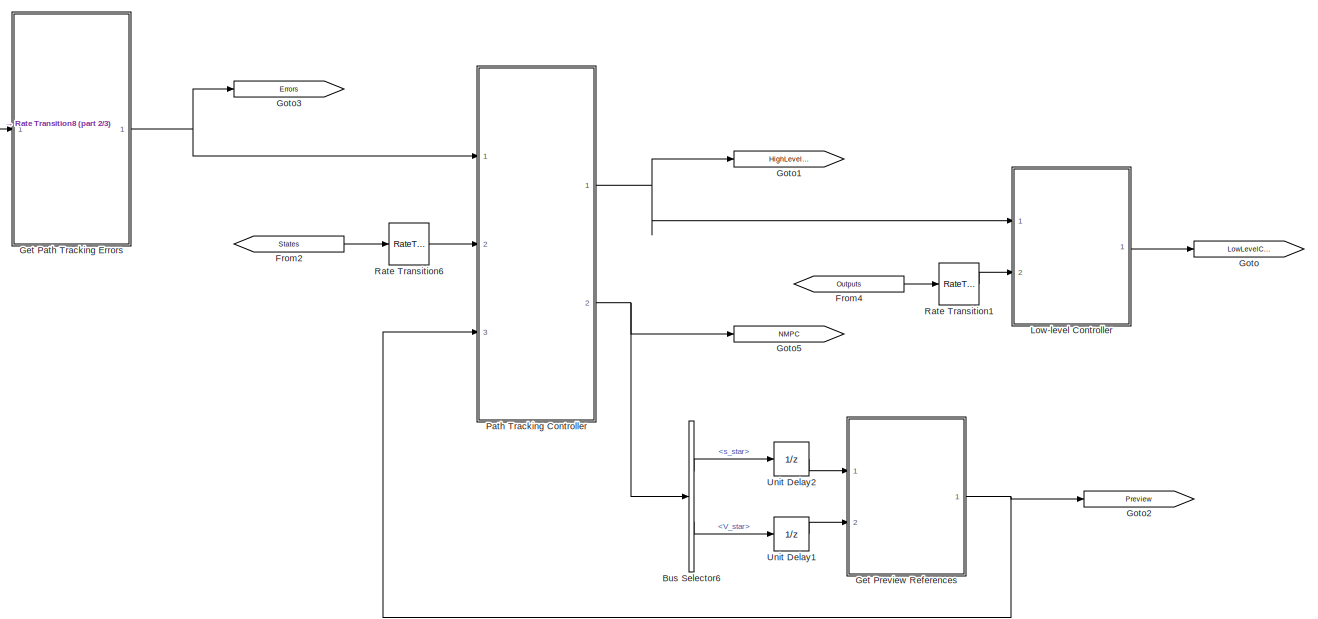
[diagram: root canvas - part 1/3, center side, full height]
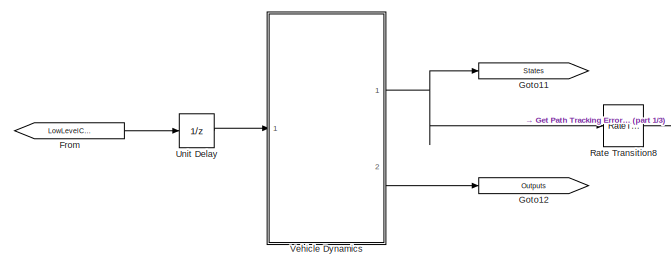
[diagram: root canvas - part 2/3, top left region]
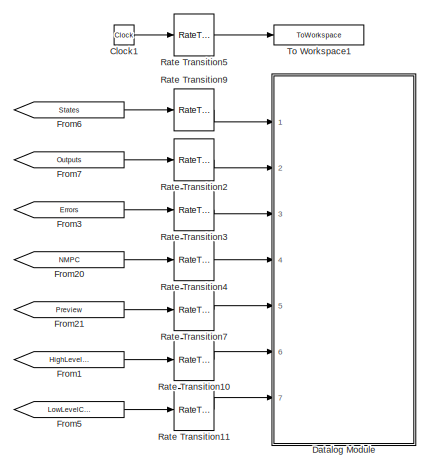
[diagram: root canvas - part 3/3, middle right region]
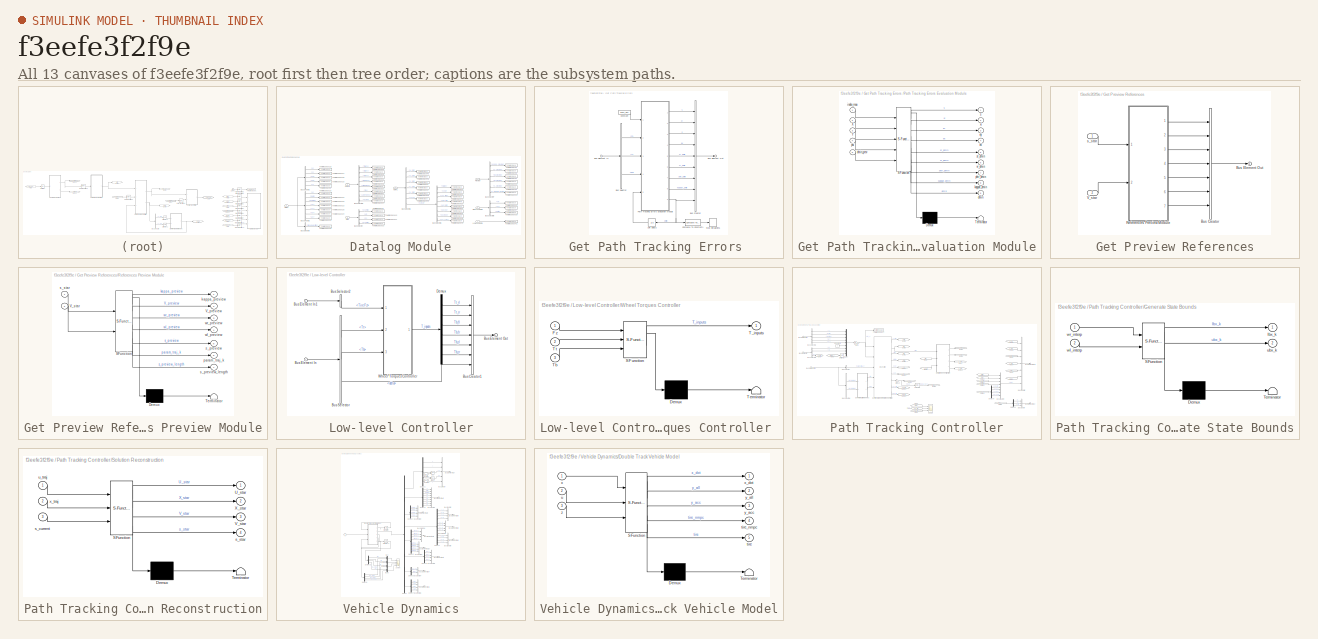
[diagram: thumbnail index - all 13 canvases of the model, root first then tree order]
MODEL slx_f3eefe3f2f9e
KIND model
CONFIG AbsTol = auto
CONFIG EnableMultiTasking = off
CONFIG FixedStep = 0.0005
CONFIG MaxStep = auto
CONFIG MinStep = auto
CONFIG RelTol = 1e-3
CONFIG SampleTimeConstraint = Unconstrained
CONFIG SolverName = ode4
CONFIG StartTime = 0.0
CONFIG StopTime = 10
WORKSPACE source: mxarray member
WORKSPACE deg2rad = 0.0174532925199
WORKSPACE g2ms2 = 9.81
WORKSPACE kph2ms = 0.277777777778
WORKSPACE rad2deg = 57.2957795131
WORKSPACE rpm2rads = 0.10471975512
BLOCK [BusSelector] Bus Selector6
  OutputSignals = s_star,V_star
  Ports = [1, 2]
BLOCK [Clock] Clock1
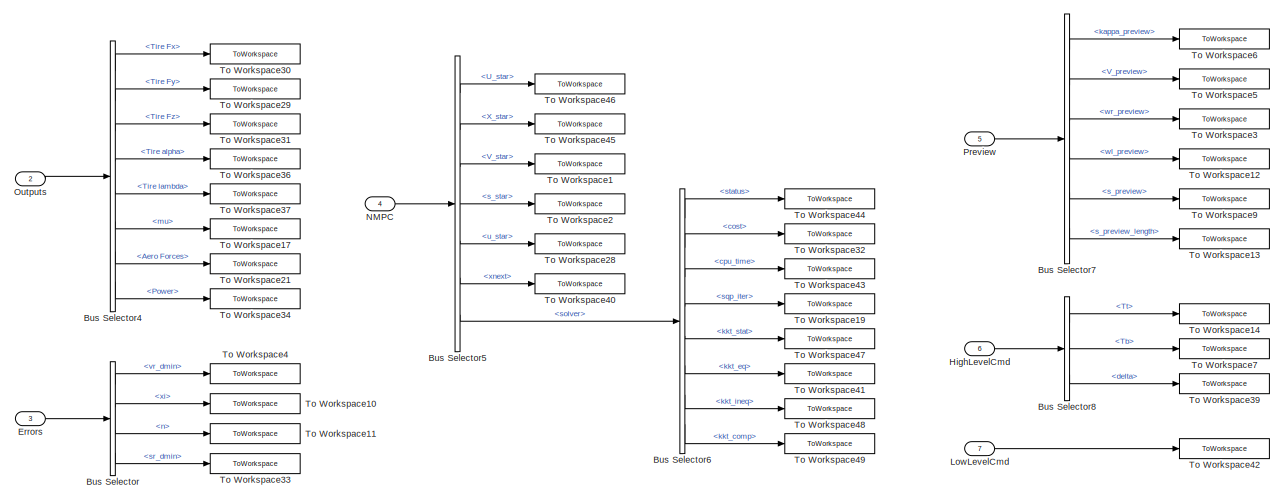
[diagram: Datalog Module - part 1/2, most of the canvas]
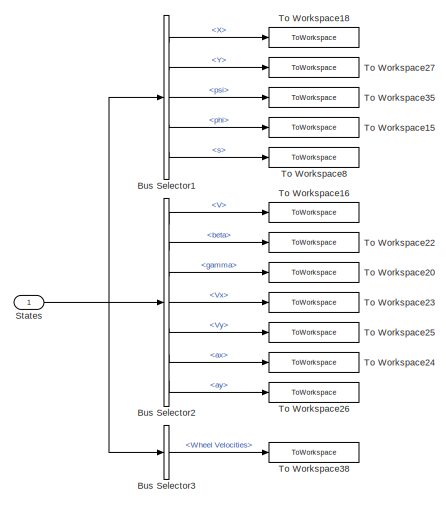
[diagram: Datalog Module - part 2/2, left side, full height]
BLOCK [SubSystem] Datalog Module
  Ports = [7]
  RequestExecContextInheritance = off
BLOCK [BusSelector] Datalog Module/Bus Selector
  OutputSignals = vr_dmin,xi,n,sr_dmin
  Ports = [1, 4]
BLOCK [BusSelector] Datalog Module/Bus Selector1
  OutputSignals = Pose.X,Pose.Y,Pose.psi,Pose.phi,Pose.s
  Ports = [1, 5]
BLOCK [BusSelector] Datalog Module/Bus Selector2
  OutputSignals = Motion.V,Motion.beta,Motion.gamma,Motion.Vx,Motion.Vy,Motion.ax,Motion.ay
  Ports = [1, 7]
BLOCK [BusSelector] Datalog Module/Bus Selector3
  OutputSignals = Wheel Velocities
  Ports = [1, 1]
BLOCK [BusSelector] Datalog Module/Bus Selector4
  OutputSignals = Tire Fx,Tire Fy,Tire Fz,Tire alpha,Tire lambda,mu,Aero Forces,Power
  Ports = [1, 8]
BLOCK [BusSelector] Datalog Module/Bus Selector5
  OutputSignals = U_star,X_star,V_star,s_star,u_star,xnext,solver
  Ports = [1, 7]
BLOCK [BusSelector] Datalog Module/Bus Selector6
  OutputSignals = status,cost,cpu_time,sqp_iter,kkt_stat,kkt_eq,kkt_ineq,kkt_comp
  Ports = [1, 8]
BLOCK [BusSelector] Datalog Module/Bus Selector7
  OutputSignals = kappa_preview,V_preview,wr_preview,wl_preview,s_preview,s_preview_length
  Ports = [1, 6]
BLOCK [BusSelector] Datalog Module/Bus Selector8
  OutputSignals = Tt,Tb,delta
  Ports = [1, 3]
BLOCK [Inport] Datalog Module/Errors
  Port = 3
BLOCK [Inport] Datalog Module/HighLevelCmd
  Port = 6
BLOCK [Inport] Datalog Module/LowLevelCmd
  Port = 7
BLOCK [Inport] Datalog Module/NMPC
  Port = 4
BLOCK [Inport] Datalog Module/Outputs
  Port = 2
BLOCK [Inport] Datalog Module/Preview
  Port = 5
BLOCK [Inport] Datalog Module/States
BLOCK [ToWorkspace] Datalog Module/To Workspace1
  FixptAsFi = on
  MaxDataPoints = inf
  Ports = [1]
  SampleTime = -1
  VariableName = V_star
BLOCK [ToWorkspace] Datalog Module/To Workspace10
  FixptAsFi = on
  MaxDataPoints = inf
  Ports = [1]
  SampleTime = -1
  VariableName = xi
BLOCK [ToWorkspace] Datalog Module/To Workspace11
  FixptAsFi = on
  MaxDataPoints = inf
  Ports = [1]
  SampleTime = -1
  VariableName = n
BLOCK [ToWorkspace] Datalog Module/To Workspace12
  FixptAsFi = on
  MaxDataPoints = inf
  Ports = [1]
  SampleTime = -1
  VariableName = wl_preview
BLOCK [ToWorkspace] Datalog Module/To Workspace13
  FixptAsFi = on
  MaxDataPoints = inf
  Ports = [1]
  SampleTime = 0.01
  VariableName = s_preview_length
BLOCK [ToWorkspace] Datalog Module/To Workspace14
  FixptAsFi = on
  MaxDataPoints = inf
  Ports = [1]
  SampleTime = -1
  Save2DSignal = 2-D array (concatenate along first dimension)
  VariableName = Tt
BLOCK [ToWorkspace] Datalog Module/To Workspace15
  FixptAsFi = on
  MaxDataPoints = inf
  Ports = [1]
  SampleTime = -1
  Save2DSignal = 2-D array (concatenate along first dimension)
  VariableName = phi_sim
BLOCK [ToWorkspace] Datalog Module/To Workspace16
  FixptAsFi = on
  MaxDataPoints = inf
  Ports = [1]
  SampleTime = -1
  Save2DSignal = 2-D array (concatenate along first dimension)
  VariableName = V_sim
BLOCK [ToWorkspace] Datalog Module/To Workspace17
  FixptAsFi = on
  MaxDataPoints = inf
  Ports = [1]
  SampleTime = -1
  VariableName = mu_sim
BLOCK [ToWorkspace] Datalog Module/To Workspace18
  FixptAsFi = on
  MaxDataPoints = inf
  Ports = [1]
  SampleTime = -1
  Save2DSignal = 2-D array (concatenate along first dimension)
  VariableName = X_sim
BLOCK [ToWorkspace] Datalog Module/To Workspace19
  FixptAsFi = on
  MaxDataPoints = inf
  Ports = [1]
  SampleTime = -1
  Save2DSignal = 2-D array (concatenate along first dimension)
  VariableName = sqp_iter
BLOCK [ToWorkspace] Datalog Module/To Workspace2
  FixptAsFi = on
  MaxDataPoints = inf
  Ports = [1]
  SampleTime = -1
  VariableName = s_star
BLOCK [ToWorkspace] Datalog Module/To Workspace20
  FixptAsFi = on
  MaxDataPoints = inf
  Ports = [1]
  SampleTime = -1
  Save2DSignal = 2-D array (concatenate along first dimension)
  VariableName = gamma_sim
BLOCK [ToWorkspace] Datalog Module/To Workspace21
  FixptAsFi = on
  MaxDataPoints = inf
  Ports = [1]
  SampleTime = -1
  VariableName = Aero_sim
BLOCK [ToWorkspace] Datalog Module/To Workspace22
  FixptAsFi = on
  MaxDataPoints = inf
  Ports = [1]
  SampleTime = -1
  Save2DSignal = 2-D array (concatenate along first dimension)
  VariableName = beta_sim
BLOCK [ToWorkspace] Datalog Module/To Workspace23
  FixptAsFi = on
  MaxDataPoints = inf
  Ports = [1]
  SampleTime = -1
  Save2DSignal = 2-D array (concatenate along first dimension)
  VariableName = Vx_sim
BLOCK [ToWorkspace] Datalog Module/To Workspace24
  FixptAsFi = on
  MaxDataPoints = inf
  Ports = [1]
  SampleTime = -1
  Save2DSignal = 2-D array (concatenate along first dimension)
  VariableName = ax_sim
BLOCK [ToWorkspace] Datalog Module/To Workspace25
  FixptAsFi = on
  MaxDataPoints = inf
  Ports = [1]
  SampleTime = -1
  Save2DSignal = 2-D array (concatenate along first dimension)
  VariableName = Vy_sim
BLOCK [ToWorkspace] Datalog Module/To Workspace26
  FixptAsFi = on
  MaxDataPoints = inf
  Ports = [1]
  SampleTime = -1
  Save2DSignal = 2-D array (concatenate along first dimension)
  VariableName = ay_sim
BLOCK [ToWorkspace] Datalog Module/To Workspace27
  FixptAsFi = on
  MaxDataPoints = inf
  Ports = [1]
  SampleTime = -1
  Save2DSignal = 2-D array (concatenate along first dimension)
  VariableName = Y_sim
BLOCK [ToWorkspace] Datalog Module/To Workspace28
  FixptAsFi = on
  MaxDataPoints = inf
  Ports = [1]
  SampleTime = -1
  Save2DSignal = 2-D array (concatenate along first dimension)
  VariableName = u_current
BLOCK [ToWorkspace] Datalog Module/To Workspace29
  FixptAsFi = on
  MaxDataPoints = inf
  Ports = [1]
  SampleTime = -1
  VariableName = Fy_sim
BLOCK [ToWorkspace] Datalog Module/To Workspace3
  FixptAsFi = on
  MaxDataPoints = inf
  Ports = [1]
  SampleTime = -1
  VariableName = wr_interp
BLOCK [ToWorkspace] Datalog Module/To Workspace30
  FixptAsFi = on
  MaxDataPoints = inf
  Ports = [1]
  SampleTime = -1
  VariableName = Fx_sim
BLOCK [ToWorkspace] Datalog Module/To Workspace31
  FixptAsFi = on
  MaxDataPoints = inf
  Ports = [1]
  SampleTime = -1
  VariableName = Fz_sim
BLOCK [ToWorkspace] Datalog Module/To Workspace32
  FixptAsFi = on
  MaxDataPoints = inf
  Ports = [1]
  SampleTime = -1
  Save2DSignal = 2-D array (concatenate along first dimension)
  VariableName = cost
BLOCK [ToWorkspace] Datalog Module/To Workspace33
  FixptAsFi = on
  MaxDataPoints = inf
  Ports = [1]
  SampleTime = -1
  VariableName = s
BLOCK [ToWorkspace] Datalog Module/To Workspace34
  FixptAsFi = on
  MaxDataPoints = inf
  Ports = [1]
  SampleTime = -1
  VariableName = Power_sim
BLOCK [ToWorkspace] Datalog Module/To Workspace35
  FixptAsFi = on
  MaxDataPoints = inf
  Ports = [1]
  SampleTime = -1
  Save2DSignal = 2-D array (concatenate along first dimension)
  VariableName = psi_sim
BLOCK [ToWorkspace] Datalog Module/To Workspace36
  FixptAsFi = on
  MaxDataPoints = inf
  Ports = [1]
  SampleTime = -1
  VariableName = alpha_sim
BLOCK [ToWorkspace] Datalog Module/To Workspace37
  FixptAsFi = on
  MaxDataPoints = inf
  Ports = [1]
  SampleTime = -1
  VariableName = lambda_sim
BLOCK [ToWorkspace] Datalog Module/To Workspace38
  FixptAsFi = on
  MaxDataPoints = inf
  Ports = [1]
  SampleTime = -1
  VariableName = omega_sim
BLOCK [ToWorkspace] Datalog Module/To Workspace39
  FixptAsFi = on
  MaxDataPoints = inf
  Ports = [1]
  SampleTime = -1
  Save2DSignal = 2-D array (concatenate along first dimension)
  VariableName = delta
BLOCK [ToWorkspace] Datalog Module/To Workspace4
  FixptAsFi = on
  MaxDataPoints = inf
  Ports = [1]
  SampleTime = -1
  VariableName = V_ref
BLOCK [ToWorkspace] Datalog Module/To Workspace40
  FixptAsFi = on
  MaxDataPoints = inf
  NameLocation = top
  Ports = [1]
  SampleTime = -1
  Save2DSignal = 2-D array (concatenate along first dimension)
  VariableName = x_next
BLOCK [ToWorkspace] Datalog Module/To Workspace41
  FixptAsFi = on
  MaxDataPoints = inf
  Ports = [1]
  SampleTime = -1
  Save2DSignal = 2-D array (concatenate along first dimension)
  VariableName = kkt_eq
BLOCK [ToWorkspace] Datalog Module/To Workspace42
  FixptAsFi = on
  MaxDataPoints = inf
  Ports = [1]
  SampleTime = -1
  Save2DSignal = 2-D array (concatenate along first dimension)
  VariableName = inputs
BLOCK [ToWorkspace] Datalog Module/To Workspace43
  FixptAsFi = on
  MaxDataPoints = inf
  Ports = [1]
  SampleTime = -1
  Save2DSignal = 2-D array (concatenate along first dimension)
  VariableName = cpu_time
BLOCK [ToWorkspace] Datalog Module/To Workspace44
  FixptAsFi = on
  MaxDataPoints = inf
  Ports = [1]
  SampleTime = -1
  Save2DSignal = 2-D array (concatenate along first dimension)
  VariableName = status
BLOCK [ToWorkspace] Datalog Module/To Workspace45
  FixptAsFi = on
  MaxDataPoints = inf
  Ports = [1]
  SampleTime = -1
  VariableName = X_star
BLOCK [ToWorkspace] Datalog Module/To Workspace46
  FixptAsFi = on
  MaxDataPoints = inf
  Ports = [1]
  SampleTime = -1
  VariableName = U_star
BLOCK [ToWorkspace] Datalog Module/To Workspace47
  FixptAsFi = on
  MaxDataPoints = inf
  NameLocation = top
  Ports = [1]
  SampleTime = -1
  Save2DSignal = 2-D array (concatenate along first dimension)
  VariableName = kkt_stat
BLOCK [ToWorkspace] Datalog Module/To Workspace48
  FixptAsFi = on
  MaxDataPoints = inf
  Ports = [1]
  SampleTime = -1
  Save2DSignal = 2-D array (concatenate along first dimension)
  VariableName = kkt_ineq
BLOCK [ToWorkspace] Datalog Module/To Workspace49
  FixptAsFi = on
  MaxDataPoints = inf
  Ports = [1]
  SampleTime = -1
  Save2DSignal = 2-D array (concatenate along first dimension)
  VariableName = kkt_comp
BLOCK [ToWorkspace] Datalog Module/To Workspace5
  FixptAsFi = on
  MaxDataPoints = inf
  Ports = [1]
  SampleTime = -1
  VariableName = V_preview
BLOCK [ToWorkspace] Datalog Module/To Workspace6
  FixptAsFi = on
  MaxDataPoints = inf
  Ports = [1]
  SampleTime = -1
  VariableName = kappa_preview
BLOCK [ToWorkspace] Datalog Module/To Workspace7
  FixptAsFi = on
  MaxDataPoints = inf
  Ports = [1]
  SampleTime = -1
  Save2DSignal = 2-D array (concatenate along first dimension)
  VariableName = Tb
BLOCK [ToWorkspace] Datalog Module/To Workspace8
  FixptAsFi = on
  MaxDataPoints = inf
  Ports = [1]
  SampleTime = -1
  Save2DSignal = 2-D array (concatenate along first dimension)
  VariableName = s_sim
BLOCK [ToWorkspace] Datalog Module/To Workspace9
  FixptAsFi = on
  MaxDataPoints = inf
  Ports = [1]
  SampleTime = -1
  VariableName = s_preview
BLOCK [From] From
  GotoTag = LowLevelCmd
BLOCK [From] From1
  GotoTag = HighLevelCmd
BLOCK [From] From2
  GotoTag = States
BLOCK [From] From20
  GotoTag = NMPC
BLOCK [From] From21
  GotoTag = Preview
BLOCK [From] From3
  GotoTag = Errors
BLOCK [From] From4
  GotoTag = Outputs
BLOCK [From] From5
  GotoTag = LowLevelCmd
BLOCK [From] From6
  GotoTag = States
BLOCK [From] From7
  GotoTag = Outputs
BLOCK [SubSystem] Get Path Tracking Errors 
  Ports = [1, 1]
  RequestExecContextInheritance = off
BLOCK [BusCreator] Get Path Tracking Errors /Bus Creator
  DisplayOption = bar
  InheritFromInputs = on
  Inputs = 9
  Ports = [9, 1]
BLOCK [Inport] Get Path Tracking Errors /Bus Element In
BLOCK [Outport] Get Path Tracking Errors /Bus Element Out
BLOCK [BusSelector] Get Path Tracking Errors /Bus Selector
  OutputSignals = Pose.X,Pose.Y,Pose.psi
  Ports = [1, 3]
BLOCK [Reference] Get Path Tracking Errors /Compare To Constant1  REF=simulink/Logic and Bit
Operations/Compare
To Constant
  Ports = [1, 1]
  SourceBlock = simulink/Logic and Bit\nOperations/Compare\nTo Constant
  SourceProductBaseCode = SL
  SourceType = Compare To Constant
BLOCK [Constant] Get Path Tracking Errors /Constant
  Value = index_max
BLOCK [SubSystem] Get Path Tracking Errors /Path Tracking Errors Evaluation Module
  ErrorFcn = Stateflow.Translate.translate
  PermitHierarchicalResolution = ExplicitOnly
  Ports = [5, 9]
  RequestExecContextInheritance = off
  SFBlockType = MATLAB Function
  TreatAsAtomicUnit = on
BLOCK [Demux] Get Path Tracking Errors /Path Tracking Errors Evaluation Module/ Demux 
  Outputs = 1
  Ports = [1, 1]
BLOCK [S-Function] Get Path Tracking Errors /Path Tracking Errors Evaluation Module/ SFunction 
  EnableBusSupport = on
  FunctionName = sf_sfun
  Parameters = kappar,phir,sr,vr,xr,yr
  PortCounts = [5 10]
  Ports = [5, 10]
  SFcnIsStateOwnerBlock = off
  SFunctionDeploymentMode = off
  Tag = Stateflow S-Function 2
BLOCK [Terminator] Get Path Tracking Errors /Path Tracking Errors Evaluation Module/ Terminator 
BLOCK [Inport] Get Path Tracking Errors /Path Tracking Errors Evaluation Module/X
  Port = 2
BLOCK [Inport] Get Path Tracking Errors /Path Tracking Errors Evaluation Module/Y
  Port = 3
BLOCK [Outport] Get Path Tracking Errors /Path Tracking Errors Evaluation Module/dmin
  Port = 9
BLOCK [Inport] Get Path Tracking Errors /Path Tracking Errors Evaluation Module/dmin_prev
  Port = 5
BLOCK [Outport] Get Path Tracking Errors /Path Tracking Errors Evaluation Module/ex
  Port = 4
BLOCK [Outport] Get Path Tracking Errors /Path Tracking Errors Evaluation Module/ey
  Port = 3
BLOCK [Inport] Get Path Tracking Errors /Path Tracking Errors Evaluation Module/index_max
BLOCK [Outport] Get Path Tracking Errors /Path Tracking Errors Evaluation Module/kappar_dmin
  Port = 8
BLOCK [Outport] Get Path Tracking Errors /Path Tracking Errors Evaluation Module/phir_dmin
  Port = 7
BLOCK [Inport] Get Path Tracking Errors /Path Tracking Errors Evaluation Module/psi
  Port = 4
BLOCK [Outport] Get Path Tracking Errors /Path Tracking Errors Evaluation Module/s
BLOCK [Outport] Get Path Tracking Errors /Path Tracking Errors Evaluation Module/sr_dmin
  Port = 5
BLOCK [Outport] Get Path Tracking Errors /Path Tracking Errors Evaluation Module/vr_dmin
  Port = 6
BLOCK [Outport] Get Path Tracking Errors /Path Tracking Errors Evaluation Module/xi
  Port = 2
BLOCK [Stop] Get Path Tracking Errors /Stop Simulation1
BLOCK [UnitDelay] Get Path Tracking Errors /Unit Delay2
  HasFrameUpgradeWarning = on
  InitialCondition = 1
  NameLocation = top
  SampleTime = -1
BLOCK [SubSystem] Get Preview References
  Ports = [2, 1]
  RequestExecContextInheritance = off
BLOCK [BusCreator] Get Preview References/Bus Creator
  DisplayOption = bar
  InheritFromInputs = on
  Inputs = 7
  Ports = [7, 1]
BLOCK [Outport] Get Preview References/Bus Element Out
BLOCK [SubSystem] Get Preview References/References Preview Module
  ErrorFcn = Stateflow.Translate.translate
  PermitHierarchicalResolution = ExplicitOnly
  Ports = [2, 7]
  RequestExecContextInheritance = off
  SFBlockType = MATLAB Function
  TreatAsAtomicUnit = on
BLOCK [Demux] Get Preview References/References Preview Module/ Demux 
  Outputs = 1
  Ports = [1, 1]
BLOCK [S-Function] Get Preview References/References Preview Module/ SFunction 
  EnableBusSupport = on
  FunctionName = sf_sfun
  Parameters = Ts,kappar,np,param_traj_0,sr,vr,wl,wr
  PortCounts = [2 8]
  Ports = [2, 8]
  SFcnIsStateOwnerBlock = off
  SFunctionDeploymentMode = off
  Tag = Stateflow S-Function 4
BLOCK [Terminator] Get Preview References/References Preview Module/ Terminator 
BLOCK [Outport] Get Preview References/References Preview Module/V_preview
  Port = 2
BLOCK [Inport] Get Preview References/References Preview Module/V_star
  Port = 2
BLOCK [Outport] Get Preview References/References Preview Module/kappa_preview
BLOCK [Outport] Get Preview References/References Preview Module/param_traj_k
  Port = 6
BLOCK [Outport] Get Preview References/References Preview Module/s_preview
  Port = 5
BLOCK [Outport] Get Preview References/References Preview Module/s_preview_length
  Port = 7
BLOCK [Inport] Get Preview References/References Preview Module/s_star
BLOCK [Outport] Get Preview References/References Preview Module/wl_preview
  Port = 4
BLOCK [Outport] Get Preview References/References Preview Module/wr_preview
  Port = 3
BLOCK [Inport] Get Preview References/V_star
  Port = 2
BLOCK [Inport] Get Preview References/s_star
BLOCK [Goto] Goto
  GotoTag = LowLevelCmd
BLOCK [Goto] Goto1
  GotoTag = HighLevelCmd
BLOCK [Goto] Goto11
  GotoTag = States
BLOCK [Goto] Goto12
  GotoTag = Outputs
BLOCK [Goto] Goto2
  GotoTag = Preview
BLOCK [Goto] Goto3
  GotoTag = Errors
BLOCK [Goto] Goto5
  GotoTag = NMPC
BLOCK [SubSystem] Low-level Controller
  Ports = [2, 1]
  RequestExecContextInheritance = off
BLOCK [BusCreator] Low-level Controller/Bus Creator1
  DisplayOption = bar
  InheritFromInputs = on
  Inputs = 7
  Ports = [7, 1]
BLOCK [Inport] Low-level Controller/Bus Element In
BLOCK [Inport] Low-level Controller/Bus Element In1
  Port = 2
BLOCK [Outport] Low-level Controller/Bus Element Out
BLOCK [BusSelector] Low-level Controller/Bus Selector
  OutputSignals = Tt,Tb,delta
  Ports = [1, 3]
BLOCK [BusSelector] Low-level Controller/Bus Selector2
  OutputSignals = Tire Fz
  Ports = [1, 1]
BLOCK [Demux] Low-level Controller/Demux
  Outputs = 6
  Ports = [1, 6]
BLOCK [SubSystem] Low-level Controller/Wheel Torques Controller 
  ErrorFcn = Stateflow.Translate.translate
  PermitHierarchicalResolution = ExplicitOnly
  Ports = [3, 1]
  RequestExecContextInheritance = off
  SFBlockType = MATLAB Function
  TreatAsAtomicUnit = on
BLOCK [Demux] Low-level Controller/Wheel Torques Controller / Demux 
  Outputs = 1
  Ports = [1, 1]
BLOCK [S-Function] Low-level Controller/Wheel Torques Controller / SFunction 
  EnableBusSupport = on
  FunctionName = sf_sfun
  PortCounts = [3 2]
  Ports = [3, 2]
  SFcnIsStateOwnerBlock = off
  SFunctionDeploymentMode = off
  Tag = Stateflow S-Function 3
BLOCK [Terminator] Low-level Controller/Wheel Torques Controller / Terminator 
BLOCK [Inport] Low-level Controller/Wheel Torques Controller /Fz
BLOCK [Outport] Low-level Controller/Wheel Torques Controller /T_inputs
BLOCK [Inport] Low-level Controller/Wheel Torques Controller /Tb
  Port = 3
BLOCK [Inport] Low-level Controller/Wheel Torques Controller /Tt
  Port = 2
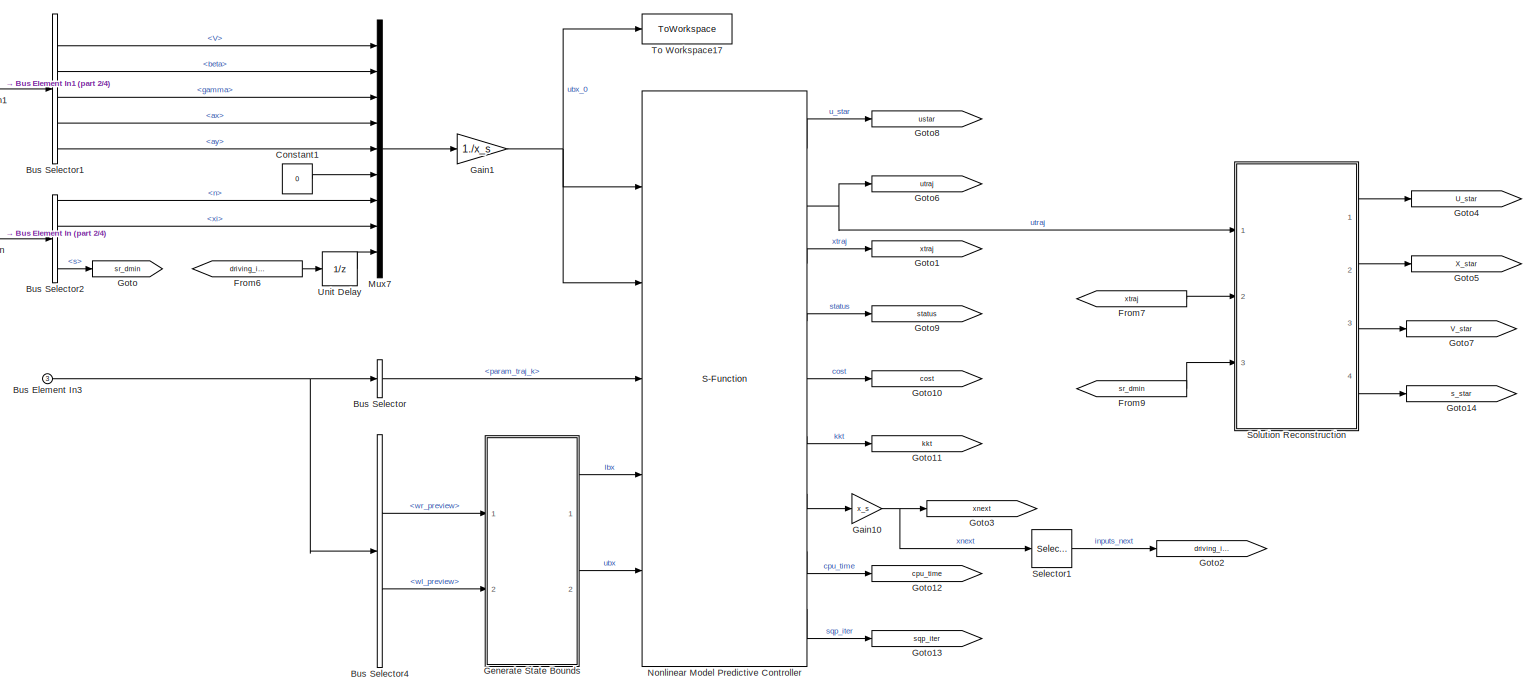
[diagram: Path Tracking Controller - part 1/4, center side, full height]
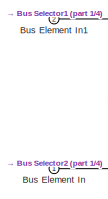
[diagram: Path Tracking Controller - part 2/4, top left region]
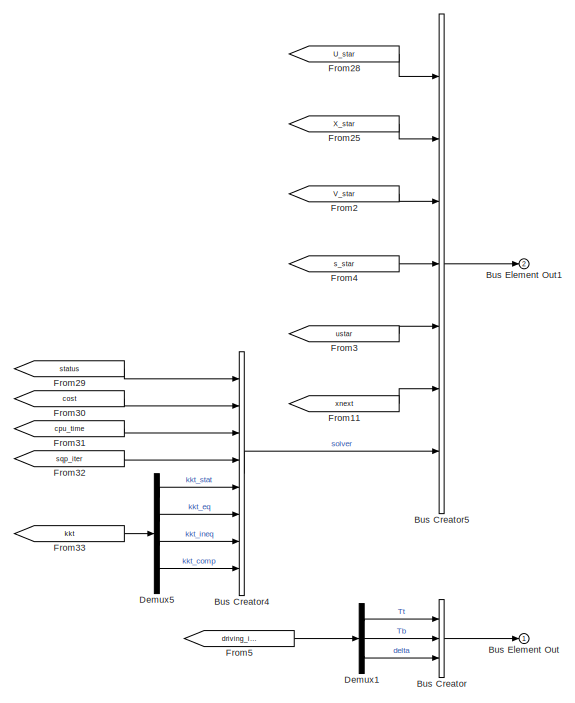
[diagram: Path Tracking Controller - part 3/4, right side, full height]
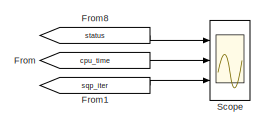
[diagram: Path Tracking Controller - part 4/4, bottom center region]
BLOCK [SubSystem] Path Tracking Controller
  Ports = [3, 2]
  RequestExecContextInheritance = off
BLOCK [BusCreator] Path Tracking Controller/Bus Creator
  DisplayOption = bar
  InheritFromInputs = on
  Inputs = 3
  Ports = [3, 1]
BLOCK [BusCreator] Path Tracking Controller/Bus Creator4
  DisplayOption = bar
  InheritFromInputs = on
  Inputs = 8
  Ports = [8, 1]
BLOCK [BusCreator] Path Tracking Controller/Bus Creator5
  DisplayOption = bar
  InheritFromInputs = on
  Inputs = 7
  Ports = [7, 1]
BLOCK [Inport] Path Tracking Controller/Bus Element In
BLOCK [Inport] Path Tracking Controller/Bus Element In1
  Port = 2
BLOCK [Inport] Path Tracking Controller/Bus Element In3
  Port = 3
BLOCK [Outport] Path Tracking Controller/Bus Element Out
BLOCK [Outport] Path Tracking Controller/Bus Element Out1
  Port = 2
BLOCK [BusSelector] Path Tracking Controller/Bus Selector
  OutputSignals = param_traj_k
  Ports = [1, 1]
BLOCK [BusSelector] Path Tracking Controller/Bus Selector1
  OutputSignals = Motion.V,Motion.beta,Motion.gamma,Motion.ax,Motion.ay
  Ports = [1, 5]
BLOCK [BusSelector] Path Tracking Controller/Bus Selector2
  OutputSignals = n,xi,s
  Ports = [1, 3]
BLOCK [BusSelector] Path Tracking Controller/Bus Selector4
  OutputSignals = wr_preview,wl_preview
  Ports = [1, 2]
BLOCK [Constant] Path Tracking Controller/Constant1
  Value = 0
BLOCK [Demux] Path Tracking Controller/Demux1
  Outputs = 3
  Ports = [1, 3]
BLOCK [Demux] Path Tracking Controller/Demux5
  Ports = [1, 4]
BLOCK [From] Path Tracking Controller/From
  GotoTag = cpu_time
BLOCK [From] Path Tracking Controller/From1
  GotoTag = sqp_iter
BLOCK [From] Path Tracking Controller/From11
  GotoTag = xnext
BLOCK [From] Path Tracking Controller/From2
  GotoTag = V_star
BLOCK [From] Path Tracking Controller/From25
  GotoTag = X_star
BLOCK [From] Path Tracking Controller/From28
  GotoTag = U_star
BLOCK [From] Path Tracking Controller/From29
  GotoTag = status
BLOCK [From] Path Tracking Controller/From3
  GotoTag = ustar
BLOCK [From] Path Tracking Controller/From30
  GotoTag = cost
BLOCK [From] Path Tracking Controller/From31
  GotoTag = cpu_time
BLOCK [From] Path Tracking Controller/From32
  GotoTag = sqp_iter
BLOCK [From] Path Tracking Controller/From33
  GotoTag = kkt
BLOCK [From] Path Tracking Controller/From4
  GotoTag = s_star
BLOCK [From] Path Tracking Controller/From5
  GotoTag = driving_input_next
BLOCK [From] Path Tracking Controller/From6
  GotoTag = driving_input_next
BLOCK [From] Path Tracking Controller/From7
  GotoTag = xtraj
BLOCK [From] Path Tracking Controller/From8
  GotoTag = status
BLOCK [From] Path Tracking Controller/From9
  GotoTag = sr_dmin
BLOCK [Gain] Path Tracking Controller/Gain1
  Gain = 1./x_s
BLOCK [Gain] Path Tracking Controller/Gain10
  Gain = x_s
BLOCK [SubSystem] Path Tracking Controller/Generate State Bounds
  ErrorFcn = Stateflow.Translate.translate
  PermitHierarchicalResolution = ExplicitOnly
  Ports = [2, 2]
  RequestExecContextInheritance = off
  SFBlockType = MATLAB Function
  TreatAsAtomicUnit = on
BLOCK [Demux] Path Tracking Controller/Generate State Bounds/ Demux 
  Outputs = 1
  Ports = [1, 1]
BLOCK [S-Function] Path Tracking Controller/Generate State Bounds/ SFunction 
  EnableBusSupport = on
  FunctionName = sf_sfun
  Parameters = N,lbx_0,n_s,nx,ubx_0,veh
  PortCounts = [2 3]
  Ports = [2, 3]
  SFcnIsStateOwnerBlock = off
  SFunctionDeploymentMode = off
  Tag = Stateflow S-Function 1
BLOCK [Terminator] Path Tracking Controller/Generate State Bounds/ Terminator 
BLOCK [Outport] Path Tracking Controller/Generate State Bounds/lbx_k
BLOCK [Outport] Path Tracking Controller/Generate State Bounds/ubx_k
  Port = 2
BLOCK [Inport] Path Tracking Controller/Generate State Bounds/wl_interp
  Port = 2
BLOCK [Inport] Path Tracking Controller/Generate State Bounds/wr_interp
BLOCK [Goto] Path Tracking Controller/Goto
  GotoTag = sr_dmin
BLOCK [Goto] Path Tracking Controller/Goto1
  GotoTag = xtraj
BLOCK [Goto] Path Tracking Controller/Goto10
  GotoTag = cost
BLOCK [Goto] Path Tracking Controller/Goto11
  GotoTag = kkt
BLOCK [Goto] Path Tracking Controller/Goto12
  GotoTag = cpu_time
BLOCK [Goto] Path Tracking Controller/Goto13
  GotoTag = sqp_iter
BLOCK [Goto] Path Tracking Controller/Goto14
  GotoTag = s_star
BLOCK [Goto] Path Tracking Controller/Goto2
  GotoTag = driving_input_next
BLOCK [Goto] Path Tracking Controller/Goto3
  GotoTag = xnext
BLOCK [Goto] Path Tracking Controller/Goto4
  GotoTag = U_star
BLOCK [Goto] Path Tracking Controller/Goto5
  GotoTag = X_star
BLOCK [Goto] Path Tracking Controller/Goto6
  GotoTag = utraj
BLOCK [Goto] Path Tracking Controller/Goto7
  GotoTag = V_star
BLOCK [Goto] Path Tracking Controller/Goto8
  GotoTag = ustar
BLOCK [Goto] Path Tracking Controller/Goto9
  GotoTag = status
BLOCK [Mux] Path Tracking Controller/Mux7
  DisplayOption = bar
  Inputs = [1 1 1 1 1 1 1 1 3]
  Ports = [9, 1]
BLOCK [S-Function] Path Tracking Controller/Nonlinear Model Predictive Controller
  EnableBusSupport = off
  FunctionName = acados_solver_sfunction_nmpc
  Ports = [5, 9]
  SFcnIsStateOwnerBlock = off
  SFunctionDeploymentMode = off
BLOCK [Scope] Path Tracking Controller/Scope
  Floating = off
  NumInputPorts = 3
  Ports = [3]
  ScopeSpecificationString = Simulink.scopes.TimeScopeBlockCfg('CurrentConfiguration', extmgr.ConfigurationSet(extmgr.Configuration('Core','General UI',true),extmgr.Configuration('Core','Source UI',true),extmgr.Configuration('Sources','WiredSimulink',true,'DataLoggingVariableName','ScopeData1'),extmgr.Configuration('Visuals','Time Domain',true,'SerializedDisplays',{struct('MinYLimReal','-0.5','MaxYLimReal','4.5','YLabelReal',...<+2778ch>
BLOCK [Selector] Path Tracking Controller/Selector1
  IndexOptions = Index vector (dialog)
  Indices = [9 10 11]
  InputPortWidth = 11
  OutputSizes = 1
  Ports = [1, 1]
BLOCK [SubSystem] Path Tracking Controller/Solution Reconstruction
  ErrorFcn = Stateflow.Translate.translate
  PermitHierarchicalResolution = ExplicitOnly
  Ports = [3, 4]
  RequestExecContextInheritance = off
  SFBlockType = MATLAB Function
  TreatAsAtomicUnit = on
BLOCK [Demux] Path Tracking Controller/Solution Reconstruction/ Demux 
  Outputs = 1
  Ports = [1, 1]
BLOCK [S-Function] Path Tracking Controller/Solution Reconstruction/ SFunction 
  EnableBusSupport = on
  FunctionName = sf_sfun
  Parameters = N,nu,nx,u_s,x_s
  PortCounts = [3 5]
  Ports = [3, 5]
  SFcnIsStateOwnerBlock = off
  SFunctionDeploymentMode = off
  Tag = Stateflow S-Function 6
BLOCK [Terminator] Path Tracking Controller/Solution Reconstruction/ Terminator 
BLOCK [Outport] Path Tracking Controller/Solution Reconstruction/U_star
BLOCK [Outport] Path Tracking Controller/Solution Reconstruction/V_star
  Port = 3
BLOCK [Outport] Path Tracking Controller/Solution Reconstruction/X_star
  Port = 2
BLOCK [Inport] Path Tracking Controller/Solution Reconstruction/s_current
  Port = 3
BLOCK [Outport] Path Tracking Controller/Solution Reconstruction/s_star
  Port = 4
BLOCK [Inport] Path Tracking Controller/Solution Reconstruction/u_traj
BLOCK [Inport] Path Tracking Controller/Solution Reconstruction/x_traj
  Port = 2
BLOCK [ToWorkspace] Path Tracking Controller/To Workspace17
  FixptAsFi = on
  MaxDataPoints = inf
  Ports = [1]
  SampleTime = -1
  Save2DSignal = 2-D array (concatenate along first dimension)
  VariableName = states
BLOCK [UnitDelay] Path Tracking Controller/Unit Delay
  HasFrameUpgradeWarning = on
  InitialCondition = [0 0 0]'
  SampleTime = -1
BLOCK [RateTransition] Rate Transition1
  OutPortSampleTime = Ts
BLOCK [RateTransition] Rate Transition10
  OutPortSampleTime = Ts_log
BLOCK [RateTransition] Rate Transition11
  OutPortSampleTime = Ts_log
BLOCK [RateTransition] Rate Transition2
  OutPortSampleTime = Ts_log
BLOCK [RateTransition] Rate Transition3
  OutPortSampleTime = Ts_log
BLOCK [RateTransition] Rate Transition4
  OutPortSampleTime = Ts_log
BLOCK [RateTransition] Rate Transition5
  OutPortSampleTime = Ts_log
BLOCK [RateTransition] Rate Transition6
  OutPortSampleTime = Ts
BLOCK [RateTransition] Rate Transition7
  OutPortSampleTime = Ts_log
BLOCK [RateTransition] Rate Transition8
  OutPortSampleTime = Ts
BLOCK [RateTransition] Rate Transition9
  OutPortSampleTime = Ts_log
BLOCK [ToWorkspace] To Workspace1
  FixptAsFi = on
  MaxDataPoints = inf
  Ports = [1]
  SampleTime = -1
  Save2DSignal = 2-D array (concatenate along first dimension)
  VariableName = t
BLOCK [UnitDelay] Unit Delay
  HasFrameUpgradeWarning = on
  InitialCondition = zeros(7,1)
  SampleTime = -1
BLOCK [UnitDelay] Unit Delay1
  HasFrameUpgradeWarning = on
  InitialCondition = V_star_0
  SampleTime = -1
BLOCK [UnitDelay] Unit Delay2
  HasFrameUpgradeWarning = on
  InitialCondition = s_star_0
  SampleTime = -1
BLOCK [SubSystem] Vehicle Dynamics
  Ports = [1, 2]
  RequestExecContextInheritance = off
BLOCK [BusCreator] Vehicle Dynamics/Bus Creator
  DisplayOption = bar
  InheritFromInputs = on
  Inputs = 5
  Ports = [5, 1]
BLOCK [BusCreator] Vehicle Dynamics/Bus Creator1
  DisplayOption = bar
  InheritFromInputs = on
  Inputs = 9
  Ports = [9, 1]
BLOCK [BusCreator] Vehicle Dynamics/Bus Creator10
  DisplayOption = bar
  InheritFromInputs = on
  Inputs = 4
  Ports = [4, 1]
BLOCK [BusCreator] Vehicle Dynamics/Bus Creator2
  DisplayOption = bar
  InheritFromInputs = on
  Inputs = 4
  Ports = [4, 1]
BLOCK [BusCreator] Vehicle Dynamics/Bus Creator3
  DisplayOption = bar
  InheritFromInputs = on
  Inputs = 4
  Ports = [4, 1]
BLOCK [BusCreator] Vehicle Dynamics/Bus Creator4
  DisplayOption = bar
  InheritFromInputs = on
  Inputs = 4
  Ports = [4, 1]
BLOCK [BusCreator] Vehicle Dynamics/Bus Creator5
  DisplayOption = bar
  InheritFromInputs = on
  Inputs = 4
  Ports = [4, 1]
BLOCK [BusCreator] Vehicle Dynamics/Bus Creator6
  DisplayOption = bar
  InheritFromInputs = on
  Inputs = 4
  Ports = [4, 1]
BLOCK [BusCreator] Vehicle Dynamics/Bus Creator7
  DisplayOption = bar
  InheritFromInputs = on
  Inputs = 2
  Ports = [2, 1]
BLOCK [BusCreator] Vehicle Dynamics/Bus Creator8
  DisplayOption = bar
  InheritFromInputs = on
  Inputs = 4
  Ports = [4, 1]
BLOCK [BusCreator] Vehicle Dynamics/Bus Creator9
  DisplayOption = bar
  InheritFromInputs = on
  Inputs = 4
  Ports = [4, 1]
BLOCK [Outport] Vehicle Dynamics/Bus Element Out
BLOCK [Outport] Vehicle Dynamics/Bus Element Out1
BLOCK [Outport] Vehicle Dynamics/Bus Element Out10
  Port = 2
BLOCK [Outport] Vehicle Dynamics/Bus Element Out2
BLOCK [Outport] Vehicle Dynamics/Bus Element Out3
  Port = 2
BLOCK [Outport] Vehicle Dynamics/Bus Element Out4
  Port = 2
BLOCK [Outport] Vehicle Dynamics/Bus Element Out5
  Port = 2
BLOCK [Outport] Vehicle Dynamics/Bus Element Out6
  Port = 2
BLOCK [Outport] Vehicle Dynamics/Bus Element Out7
  Port = 2
BLOCK [Outport] Vehicle Dynamics/Bus Element Out8
  Port = 2
BLOCK [Outport] Vehicle Dynamics/Bus Element Out9
  Port = 2
BLOCK [Constant] Vehicle Dynamics/Constant
  Value = 2*pi
BLOCK [Constant] Vehicle Dynamics/Constant1
  Value = 2*pi
BLOCK [Demux] Vehicle Dynamics/Demux
  Outputs = [5 9 4 12 8 4 2 4]
  Ports = [1, 8]
BLOCK [Demux] Vehicle Dynamics/Demux1
  Outputs = 5
  Ports = [1, 5]
BLOCK [Demux] Vehicle Dynamics/Demux10
  Ports = [1, 4]
BLOCK [Demux] Vehicle Dynamics/Demux2
  Outputs = 9
  Ports = [1, 9]
BLOCK [Demux] Vehicle Dynamics/Demux3
  Ports = [1, 4]
BLOCK [Demux] Vehicle Dynamics/Demux4
  Outputs = 12
  Ports = [1, 12]
BLOCK [Demux] Vehicle Dynamics/Demux5
  Outputs = 8
  Ports = [1, 8]
BLOCK [Demux] Vehicle Dynamics/Demux6
  Ports = [1, 4]
BLOCK [Demux] Vehicle Dynamics/Demux7
  Ports = [1, 4]
BLOCK [Demux] Vehicle Dynamics/Demux8
  Outputs = 2
  Ports = [1, 2]
BLOCK [Demux] Vehicle Dynamics/Demux9
  Ports = [1, 4]
BLOCK [SubSystem] Vehicle Dynamics/Double Track Vehicle Model
  ErrorFcn = Stateflow.Translate.translate
  PermitHierarchicalResolution = ExplicitOnly
  Ports = [3, 5]
  RequestExecContextInheritance = off
  SFBlockType = MATLAB Function
  TreatAsAtomicUnit = on
BLOCK [Demux] Vehicle Dynamics/Double Track Vehicle Model/ Demux 
  Outputs = 1
  Ports = [1, 1]
BLOCK [S-Function] Vehicle Dynamics/Double Track Vehicle Model/ SFunction 
  EnableBusSupport = on
  FunctionName = sf_sfun
  Parameters = veh
  PortCounts = [3 6]
  Ports = [3, 6]
  SFcnIsStateOwnerBlock = off
  SFunctionDeploymentMode = off
  Tag = Stateflow S-Function 7
BLOCK [Terminator] Vehicle Dynamics/Double Track Vehicle Model/ Terminator 
BLOCK [Outport] Vehicle Dynamics/Double Track Vehicle Model/tire
  Port = 5
BLOCK [Outport] Vehicle Dynamics/Double Track Vehicle Model/tire_nmpc
  Port = 4
BLOCK [Inport] Vehicle Dynamics/Double Track Vehicle Model/u
  Port = 2
BLOCK [Inport] Vehicle Dynamics/Double Track Vehicle Model/x
BLOCK [Outport] Vehicle Dynamics/Double Track Vehicle Model/x_dot
BLOCK [Outport] Vehicle Dynamics/Double Track Vehicle Model/y_acc
  Port = 3
BLOCK [Outport] Vehicle Dynamics/Double Track Vehicle Model/y_all
  Port = 2
BLOCK [Inport] Vehicle Dynamics/Double Track Vehicle Model/z
  Port = 3
BLOCK [Integrator] Vehicle Dynamics/Integrator
  InitialCondition = x0
  Ports = [1, 1]
BLOCK [Math] Vehicle Dynamics/Mod
  Operator = mod
  Ports = [2, 1]
  SignedPower = on
BLOCK [Math] Vehicle Dynamics/Mod1
  Operator = mod
  Ports = [2, 1]
  SignedPower = on
BLOCK [Mux] Vehicle Dynamics/Mux
  DisplayOption = bar
  Inputs = 2
  Ports = [2, 1]
BLOCK [Mux] Vehicle Dynamics/Mux1
  DisplayOption = bar
  Inputs = 2
  Ports = [2, 1]
BLOCK [Mux] Vehicle Dynamics/Mux2
  DisplayOption = bar
  Inputs = 2
  Ports = [2, 1]
BLOCK [Mux] Vehicle Dynamics/Mux3
  DisplayOption = bar
  Inputs = 2
  Ports = [2, 1]
BLOCK [Scope] Vehicle Dynamics/Scope
  Floating = off
  NumInputPorts = 4
  Ports = [4]
  ScopeSpecificationString = Simulink.scopes.TimeScopeBlockCfg('CurrentConfiguration', extmgr.ConfigurationSet(extmgr.Configuration('Core','General UI',true),extmgr.Configuration('Core','Source UI',true),extmgr.Configuration('Sources','WiredSimulink',true,'DataLoggingVariableName','ScopeData1'),extmgr.Configuration('Visuals','Time Domain',true,'SerializedDisplays',{struct('MinYLimReal','-0.13245','MaxYLimReal','1.19206','YLab...<+3452ch>
BLOCK [UnitDelay] Vehicle Dynamics/Unit Delay3
  HasFrameUpgradeWarning = on
  InitialCondition = [0; 0];
  SampleTime = -1
BLOCK [Inport] Vehicle Dynamics/u
LINE Bus Selector6:1 -> Unit Delay2:1
LINE Bus Selector6:2 -> Unit Delay1:1
LINE Clock1:1 -> Rate Transition5:1
LINE Datalog Module/Bus Selector1:1 -> Datalog Module/To Workspace18:1
LINE Datalog Module/Bus Selector1:2 -> Datalog Module/To Workspace27:1
LINE Datalog Module/Bus Selector1:3 -> Datalog Module/To Workspace35:1
LINE Datalog Module/Bus Selector1:4 -> Datalog Module/To Workspace15:1
LINE Datalog Module/Bus Selector1:5 -> Datalog Module/To Workspace8:1
LINE Datalog Module/Bus Selector2:1 -> Datalog Module/To Workspace16:1
LINE Datalog Module/Bus Selector2:2 -> Datalog Module/To Workspace22:1
LINE Datalog Module/Bus Selector2:3 -> Datalog Module/To Workspace20:1
LINE Datalog Module/Bus Selector2:4 -> Datalog Module/To Workspace23:1
LINE Datalog Module/Bus Selector2:5 -> Datalog Module/To Workspace25:1
LINE Datalog Module/Bus Selector2:6 -> Datalog Module/To Workspace24:1
LINE Datalog Module/Bus Selector2:7 -> Datalog Module/To Workspace26:1
LINE Datalog Module/Bus Selector3:1 -> Datalog Module/To Workspace38:1
LINE Datalog Module/Bus Selector4:1 -> Datalog Module/To Workspace30:1
LINE Datalog Module/Bus Selector4:2 -> Datalog Module/To Workspace29:1
LINE Datalog Module/Bus Selector4:3 -> Datalog Module/To Workspace31:1
LINE Datalog Module/Bus Selector4:4 -> Datalog Module/To Workspace36:1
LINE Datalog Module/Bus Selector4:5 -> Datalog Module/To Workspace37:1
LINE Datalog Module/Bus Selector4:6 -> Datalog Module/To Workspace17:1
LINE Datalog Module/Bus Selector4:7 -> Datalog Module/To Workspace21:1
LINE Datalog Module/Bus Selector4:8 -> Datalog Module/To Workspace34:1
LINE Datalog Module/Bus Selector5:1 -> Datalog Module/To Workspace46:1
LINE Datalog Module/Bus Selector5:2 -> Datalog Module/To Workspace45:1
LINE Datalog Module/Bus Selector5:3 -> Datalog Module/To Workspace1:1
LINE Datalog Module/Bus Selector5:4 -> Datalog Module/To Workspace2:1
LINE Datalog Module/Bus Selector5:5 -> Datalog Module/To Workspace28:1
LINE Datalog Module/Bus Selector5:6 -> Datalog Module/To Workspace40:1
LINE Datalog Module/Bus Selector5:7 -> Datalog Module/Bus Selector6:1
LINE Datalog Module/Bus Selector6:1 -> Datalog Module/To Workspace44:1
LINE Datalog Module/Bus Selector6:2 -> Datalog Module/To Workspace32:1
LINE Datalog Module/Bus Selector6:3 -> Datalog Module/To Workspace43:1
LINE Datalog Module/Bus Selector6:4 -> Datalog Module/To Workspace19:1
LINE Datalog Module/Bus Selector6:5 -> Datalog Module/To Workspace47:1
LINE Datalog Module/Bus Selector6:6 -> Datalog Module/To Workspace41:1
LINE Datalog Module/Bus Selector6:7 -> Datalog Module/To Workspace48:1
LINE Datalog Module/Bus Selector6:8 -> Datalog Module/To Workspace49:1
LINE Datalog Module/Bus Selector7:1 -> Datalog Module/To Workspace6:1
LINE Datalog Module/Bus Selector7:2 -> Datalog Module/To Workspace5:1
LINE Datalog Module/Bus Selector7:3 -> Datalog Module/To Workspace3:1
LINE Datalog Module/Bus Selector7:4 -> Datalog Module/To Workspace12:1
LINE Datalog Module/Bus Selector7:5 -> Datalog Module/To Workspace9:1
LINE Datalog Module/Bus Selector7:6 -> Datalog Module/To Workspace13:1
LINE Datalog Module/Bus Selector8:1 -> Datalog Module/To Workspace14:1
LINE Datalog Module/Bus Selector8:2 -> Datalog Module/To Workspace7:1
LINE Datalog Module/Bus Selector8:3 -> Datalog Module/To Workspace39:1
LINE Datalog Module/Bus Selector:1 -> Datalog Module/To Workspace4:1
LINE Datalog Module/Bus Selector:2 -> Datalog Module/To Workspace10:1
LINE Datalog Module/Bus Selector:3 -> Datalog Module/To Workspace11:1
LINE Datalog Module/Bus Selector:4 -> Datalog Module/To Workspace33:1
LINE Datalog Module/Errors:1 -> Datalog Module/Bus Selector:1
LINE Datalog Module/HighLevelCmd:1 -> Datalog Module/Bus Selector8:1
LINE Datalog Module/LowLevelCmd:1 -> Datalog Module/To Workspace42:1
LINE Datalog Module/NMPC:1 -> Datalog Module/Bus Selector5:1
LINE Datalog Module/Outputs:1 -> Datalog Module/Bus Selector4:1
LINE Datalog Module/Preview:1 -> Datalog Module/Bus Selector7:1
NET Datalog Module/States:1 -> Datalog Module/Bus Selector1:1, Datalog Module/Bus Selector2:1, Datalog Module/Bus Selector3:1
LINE From1:1 -> Rate Transition10:1
LINE From20:1 -> Rate Transition4:1
LINE From21:1 -> Rate Transition7:1
LINE From2:1 -> Rate Transition6:1
LINE From3:1 -> Rate Transition3:1
LINE From4:1 -> Rate Transition1:1
LINE From5:1 -> Rate Transition11:1
LINE From6:1 -> Rate Transition9:1
LINE From7:1 -> Rate Transition2:1
LINE From:1 -> Unit Delay:1
LINE Get Path Tracking Errors /Bus Creator:1 -> Get Path Tracking Errors /Bus Element Out:1
LINE Get Path Tracking Errors /Bus Element In:1 -> Get Path Tracking Errors /Bus Selector:1
LINE Get Path Tracking Errors /Bus Selector:1 -> Get Path Tracking Errors /Path Tracking Errors Evaluation Module:2
LINE Get Path Tracking Errors /Bus Selector:2 -> Get Path Tracking Errors /Path Tracking Errors Evaluation Module:3
LINE Get Path Tracking Errors /Bus Selector:3 -> Get Path Tracking Errors /Path Tracking Errors Evaluation Module:4
LINE Get Path Tracking Errors /Compare To Constant1:1 -> Get Path Tracking Errors /Stop Simulation1:1
LINE Get Path Tracking Errors /Constant:1 -> Get Path Tracking Errors /Path Tracking Errors Evaluation Module:1
LINE Get Path Tracking Errors /Path Tracking Errors Evaluation Module:1 -> Get Path Tracking Errors /Bus Creator:1
LINE Get Path Tracking Errors /Path Tracking Errors Evaluation Module:2 -> Get Path Tracking Errors /Bus Creator:2
LINE Get Path Tracking Errors /Path Tracking Errors Evaluation Module:3 -> Get Path Tracking Errors /Bus Creator:3
LINE Get Path Tracking Errors /Path Tracking Errors Evaluation Module:4 -> Get Path Tracking Errors /Bus Creator:4
LINE Get Path Tracking Errors /Path Tracking Errors Evaluation Module:5 -> Get Path Tracking Errors /Bus Creator:5
LINE Get Path Tracking Errors /Path Tracking Errors Evaluation Module:6 -> Get Path Tracking Errors /Bus Creator:6
LINE Get Path Tracking Errors /Path Tracking Errors Evaluation Module:7 -> Get Path Tracking Errors /Bus Creator:7
LINE Get Path Tracking Errors /Path Tracking Errors Evaluation Module:8 -> Get Path Tracking Errors /Bus Creator:8
NET Get Path Tracking Errors /Path Tracking Errors Evaluation Module:9 -> Get Path Tracking Errors /Bus Creator:9, Get Path Tracking Errors /Compare To Constant1:1, Get Path Tracking Errors /Unit Delay2:1
LINE Get Path Tracking Errors /Unit Delay2:1 -> Get Path Tracking Errors /Path Tracking Errors Evaluation Module:5
NET Get Path Tracking Errors :1 -> Goto3:1, Path Tracking Controller:1
LINE Get Preview References/Bus Creator:1 -> Get Preview References/Bus Element Out:1
LINE Get Preview References/References Preview Module:1 -> Get Preview References/Bus Creator:1
LINE Get Preview References/References Preview Module:2 -> Get Preview References/Bus Creator:2
LINE Get Preview References/References Preview Module:3 -> Get Preview References/Bus Creator:3
LINE Get Preview References/References Preview Module:4 -> Get Preview References/Bus Creator:4
LINE Get Preview References/References Preview Module:5 -> Get Preview References/Bus Creator:5
LINE Get Preview References/References Preview Module:6 -> Get Preview References/Bus Creator:6
LINE Get Preview References/References Preview Module:7 -> Get Preview References/Bus Creator:7
LINE Get Preview References/V_star:1 -> Get Preview References/References Preview Module:2
LINE Get Preview References/s_star:1 -> Get Preview References/References Preview Module:1
NET Get Preview References:1 -> Goto2:1, Path Tracking Controller:3
LINE Low-level Controller/Bus Creator1:1 -> Low-level Controller/Bus Element Out:1
LINE Low-level Controller/Bus Element In1:1 -> Low-level Controller/Bus Selector2:1
LINE Low-level Controller/Bus Element In:1 -> Low-level Controller/Bus Selector:1
LINE Low-level Controller/Bus Selector2:1 -> Low-level Controller/Wheel Torques Controller :1
LINE Low-level Controller/Bus Selector:1 -> Low-level Controller/Wheel Torques Controller :2
LINE Low-level Controller/Bus Selector:2 -> Low-level Controller/Wheel Torques Controller :3
LINE Low-level Controller/Bus Selector:3 -> Low-level Controller/Bus Creator1:7
LINE Low-level Controller/Demux:1 -> Low-level Controller/Bus Creator1:1
LINE Low-level Controller/Demux:2 -> Low-level Controller/Bus Creator1:2
LINE Low-level Controller/Demux:3 -> Low-level Controller/Bus Creator1:3
LINE Low-level Controller/Demux:4 -> Low-level Controller/Bus Creator1:4
LINE Low-level Controller/Demux:5 -> Low-level Controller/Bus Creator1:5
LINE Low-level Controller/Demux:6 -> Low-level Controller/Bus Creator1:6
LINE Low-level Controller/Wheel Torques Controller :1 -> Low-level Controller/Demux:1
LINE Low-level Controller:1 -> Goto:1
LINE Path Tracking Controller/Bus Creator4:1 -> Path Tracking Controller/Bus Creator5:7
LINE Path Tracking Controller/Bus Creator5:1 -> Path Tracking Controller/Bus Element Out1:1
LINE Path Tracking Controller/Bus Creator:1 -> Path Tracking Controller/Bus Element Out:1
LINE Path Tracking Controller/Bus Element In1:1 -> Path Tracking Controller/Bus Selector1:1
NET Path Tracking Controller/Bus Element In3:1 -> Path Tracking Controller/Bus Selector4:1, Path Tracking Controller/Bus Selector:1
LINE Path Tracking Controller/Bus Element In:1 -> Path Tracking Controller/Bus Selector2:1
LINE Path Tracking Controller/Bus Selector1:1 -> Path Tracking Controller/Mux7:1
LINE Path Tracking Controller/Bus Selector1:2 -> Path Tracking Controller/Mux7:2
LINE Path Tracking Controller/Bus Selector1:3 -> Path Tracking Controller/Mux7:3
LINE Path Tracking Controller/Bus Selector1:4 -> Path Tracking Controller/Mux7:4
LINE Path Tracking Controller/Bus Selector1:5 -> Path Tracking Controller/Mux7:5
LINE Path Tracking Controller/Bus Selector2:1 -> Path Tracking Controller/Mux7:7
LINE Path Tracking Controller/Bus Selector2:2 -> Path Tracking Controller/Mux7:8
LINE Path Tracking Controller/Bus Selector2:3 -> Path Tracking Controller/Goto:1
LINE Path Tracking Controller/Bus Selector4:1 -> Path Tracking Controller/Generate State Bounds:1
LINE Path Tracking Controller/Bus Selector4:2 -> Path Tracking Controller/Generate State Bounds:2
LINE Path Tracking Controller/Bus Selector:1 -> Path Tracking Controller/Nonlinear Model Predictive Controller:3
LINE Path Tracking Controller/Constant1:1 -> Path Tracking Controller/Mux7:6
LINE Path Tracking Controller/Demux1:1 -> Path Tracking Controller/Bus Creator:1
LINE Path Tracking Controller/Demux1:2 -> Path Tracking Controller/Bus Creator:2
LINE Path Tracking Controller/Demux1:3 -> Path Tracking Controller/Bus Creator:3
LINE Path Tracking Controller/Demux5:1 -> Path Tracking Controller/Bus Creator4:5
LINE Path Tracking Controller/Demux5:2 -> Path Tracking Controller/Bus Creator4:6
LINE Path Tracking Controller/Demux5:3 -> Path Tracking Controller/Bus Creator4:7
LINE Path Tracking Controller/Demux5:4 -> Path Tracking Controller/Bus Creator4:8
LINE Path Tracking Controller/From11:1 -> Path Tracking Controller/Bus Creator5:6
LINE Path Tracking Controller/From1:1 -> Path Tracking Controller/Scope:3
LINE Path Tracking Controller/From25:1 -> Path Tracking Controller/Bus Creator5:2
LINE Path Tracking Controller/From28:1 -> Path Tracking Controller/Bus Creator5:1
LINE Path Tracking Controller/From29:1 -> Path Tracking Controller/Bus Creator4:1
LINE Path Tracking Controller/From2:1 -> Path Tracking Controller/Bus Creator5:3
LINE Path Tracking Controller/From30:1 -> Path Tracking Controller/Bus Creator4:2
LINE Path Tracking Controller/From31:1 -> Path Tracking Controller/Bus Creator4:3
LINE Path Tracking Controller/From32:1 -> Path Tracking Controller/Bus Creator4:4
LINE Path Tracking Controller/From33:1 -> Path Tracking Controller/Demux5:1
LINE Path Tracking Controller/From3:1 -> Path Tracking Controller/Bus Creator5:5
LINE Path Tracking Controller/From4:1 -> Path Tracking Controller/Bus Creator5:4
LINE Path Tracking Controller/From5:1 -> Path Tracking Controller/Demux1:1
LINE Path Tracking Controller/From6:1 -> Path Tracking Controller/Unit Delay:1
LINE Path Tracking Controller/From7:1 -> Path Tracking Controller/Solution Reconstruction:2
LINE Path Tracking Controller/From8:1 -> Path Tracking Controller/Scope:1
LINE Path Tracking Controller/From9:1 -> Path Tracking Controller/Solution Reconstruction:3
LINE Path Tracking Controller/From:1 -> Path Tracking Controller/Scope:2
NET Path Tracking Controller/Gain10:1 -> Path Tracking Controller/Goto3:1, Path Tracking Controller/Selector1:1
NET Path Tracking Controller/Gain1:1 -> Path Tracking Controller/Nonlinear Model Predictive Controller:1, Path Tracking Controller/Nonlinear Model Predictive Controller:2, Path Tracking Controller/To Workspace17:1
LINE Path Tracking Controller/Generate State Bounds:1 -> Path Tracking Controller/Nonlinear Model Predictive Controller:4
LINE Path Tracking Controller/Generate State Bounds:2 -> Path Tracking Controller/Nonlinear Model Predictive Controller:5
LINE Path Tracking Controller/Mux7:1 -> Path Tracking Controller/Gain1:1
LINE Path Tracking Controller/Nonlinear Model Predictive Controller:1 -> Path Tracking Controller/Goto8:1
NET Path Tracking Controller/Nonlinear Model Predictive Controller:2 -> Path Tracking Controller/Goto6:1, Path Tracking Controller/Solution Reconstruction:1
LINE Path Tracking Controller/Nonlinear Model Predictive Controller:3 -> Path Tracking Controller/Goto1:1
LINE Path Tracking Controller/Nonlinear Model Predictive Controller:4 -> Path Tracking Controller/Goto9:1
LINE Path Tracking Controller/Nonlinear Model Predictive Controller:5 -> Path Tracking Controller/Goto10:1
LINE Path Tracking Controller/Nonlinear Model Predictive Controller:6 -> Path Tracking Controller/Goto11:1
LINE Path Tracking Controller/Nonlinear Model Predictive Controller:7 -> Path Tracking Controller/Gain10:1
LINE Path Tracking Controller/Nonlinear Model Predictive Controller:8 -> Path Tracking Controller/Goto12:1
LINE Path Tracking Controller/Nonlinear Model Predictive Controller:9 -> Path Tracking Controller/Goto13:1
LINE Path Tracking Controller/Selector1:1 -> Path Tracking Controller/Goto2:1
LINE Path Tracking Controller/Solution Reconstruction:1 -> Path Tracking Controller/Goto4:1
LINE Path Tracking Controller/Solution Reconstruction:2 -> Path Tracking Controller/Goto5:1
LINE Path Tracking Controller/Solution Reconstruction:3 -> Path Tracking Controller/Goto7:1
LINE Path Tracking Controller/Solution Reconstruction:4 -> Path Tracking Controller/Goto14:1
LINE Path Tracking Controller/Unit Delay:1 -> Path Tracking Controller/Mux7:9
NET Path Tracking Controller:1 -> Goto1:1, Low-level Controller:1
NET Path Tracking Controller:2 -> Bus Selector6:1, Goto5:1
LINE Rate Transition10:1 -> Datalog Module:6
LINE Rate Transition11:1 -> Datalog Module:7
LINE Rate Transition1:1 -> Low-level Controller:2
LINE Rate Transition2:1 -> Datalog Module:2
LINE Rate Transition3:1 -> Datalog Module:3
LINE Rate Transition4:1 -> Datalog Module:4
LINE Rate Transition5:1 -> To Workspace1:1
LINE Rate Transition6:1 -> Path Tracking Controller:2
LINE Rate Transition7:1 -> Datalog Module:5
LINE Rate Transition8:1 -> Get Path Tracking Errors :1
LINE Rate Transition9:1 -> Datalog Module:1
LINE Unit Delay1:1 -> Get Preview References:2
LINE Unit Delay2:1 -> Get Preview References:1
LINE Unit Delay:1 -> Vehicle Dynamics:1
LINE Vehicle Dynamics/Bus Creator10:1 -> Vehicle Dynamics/Bus Element Out3:1
LINE Vehicle Dynamics/Bus Creator1:1 -> Vehicle Dynamics/Bus Element Out1:1
LINE Vehicle Dynamics/Bus Creator2:1 -> Vehicle Dynamics/Bus Element Out2:1
LINE Vehicle Dynamics/Bus Creator3:1 -> Vehicle Dynamics/Bus Element Out6:1
LINE Vehicle Dynamics/Bus Creator4:1 -> Vehicle Dynamics/Bus Element Out10:1
LINE Vehicle Dynamics/Bus Creator5:1 -> Vehicle Dynamics/Bus Element Out4:1
LINE Vehicle Dynamics/Bus Creator6:1 -> Vehicle Dynamics/Bus Element Out5:1
LINE Vehicle Dynamics/Bus Creator7:1 -> Vehicle Dynamics/Bus Element Out7:1
LINE Vehicle Dynamics/Bus Creator8:1 -> Vehicle Dynamics/Bus Element Out8:1
LINE Vehicle Dynamics/Bus Creator9:1 -> Vehicle Dynamics/Bus Element Out9:1
LINE Vehicle Dynamics/Bus Creator:1 -> Vehicle Dynamics/Bus Element Out:1
LINE Vehicle Dynamics/Constant1:1 -> Vehicle Dynamics/Mod1:2
LINE Vehicle Dynamics/Constant:1 -> Vehicle Dynamics/Mod:2
LINE Vehicle Dynamics/Demux10:1 -> Vehicle Dynamics/Mux:1
LINE Vehicle Dynamics/Demux10:2 -> Vehicle Dynamics/Mux1:1
LINE Vehicle Dynamics/Demux10:3 -> Vehicle Dynamics/Mux2:1
LINE Vehicle Dynamics/Demux10:4 -> Vehicle Dynamics/Mux3:1
LINE Vehicle Dynamics/Demux1:1 -> Vehicle Dynamics/Bus Creator:1
LINE Vehicle Dynamics/Demux1:2 -> Vehicle Dynamics/Bus Creator:2
LINE Vehicle Dynamics/Demux1:3 -> Vehicle Dynamics/Mod:1
LINE Vehicle Dynamics/Demux1:4 -> Vehicle Dynamics/Mod1:1
LINE Vehicle Dynamics/Demux1:5 -> Vehicle Dynamics/Bus Creator:5
LINE Vehicle Dynamics/Demux2:1 -> Vehicle Dynamics/Bus Creator1:1
LINE Vehicle Dynamics/Demux2:2 -> Vehicle Dynamics/Bus Creator1:2
LINE Vehicle Dynamics/Demux2:3 -> Vehicle Dynamics/Bus Creator1:3
LINE Vehicle Dynamics/Demux2:4 -> Vehicle Dynamics/Bus Creator1:4
LINE Vehicle Dynamics/Demux2:5 -> Vehicle Dynamics/Bus Creator1:5
LINE Vehicle Dynamics/Demux2:6 -> Vehicle Dynamics/Bus Creator1:6
LINE Vehicle Dynamics/Demux2:7 -> Vehicle Dynamics/Bus Creator1:7
LINE Vehicle Dynamics/Demux2:8 -> Vehicle Dynamics/Bus Creator1:8
LINE Vehicle Dynamics/Demux2:9 -> Vehicle Dynamics/Bus Creator1:9
LINE Vehicle Dynamics/Demux3:1 -> Vehicle Dynamics/Bus Creator2:1
LINE Vehicle Dynamics/Demux3:2 -> Vehicle Dynamics/Bus Creator2:2
LINE Vehicle Dynamics/Demux3:3 -> Vehicle Dynamics/Bus Creator2:3
LINE Vehicle Dynamics/Demux3:4 -> Vehicle Dynamics/Bus Creator2:4
LINE Vehicle Dynamics/Demux4:1 -> Vehicle Dynamics/Bus Creator3:1
LINE Vehicle Dynamics/Demux4:10 -> Vehicle Dynamics/Bus Creator9:2
LINE Vehicle Dynamics/Demux4:11 -> Vehicle Dynamics/Bus Creator9:3
LINE Vehicle Dynamics/Demux4:12 -> Vehicle Dynamics/Bus Creator9:4
LINE Vehicle Dynamics/Demux4:2 -> Vehicle Dynamics/Bus Creator3:2
LINE Vehicle Dynamics/Demux4:3 -> Vehicle Dynamics/Bus Creator3:3
LINE Vehicle Dynamics/Demux4:4 -> Vehicle Dynamics/Bus Creator3:4
LINE Vehicle Dynamics/Demux4:5 -> Vehicle Dynamics/Bus Creator8:1
LINE Vehicle Dynamics/Demux4:6 -> Vehicle Dynamics/Bus Creator8:2
LINE Vehicle Dynamics/Demux4:7 -> Vehicle Dynamics/Bus Creator8:3
LINE Vehicle Dynamics/Demux4:8 -> Vehicle Dynamics/Bus Creator8:4
LINE Vehicle Dynamics/Demux4:9 -> Vehicle Dynamics/Bus Creator9:1
LINE Vehicle Dynamics/Demux5:1 -> Vehicle Dynamics/Bus Creator10:1
LINE Vehicle Dynamics/Demux5:2 -> Vehicle Dynamics/Bus Creator10:2
LINE Vehicle Dynamics/Demux5:3 -> Vehicle Dynamics/Bus Creator10:3
LINE Vehicle Dynamics/Demux5:4 -> Vehicle Dynamics/Bus Creator10:4
LINE Vehicle Dynamics/Demux5:5 -> Vehicle Dynamics/Bus Creator4:1
LINE Vehicle Dynamics/Demux5:6 -> Vehicle Dynamics/Bus Creator4:2
LINE Vehicle Dynamics/Demux5:7 -> Vehicle Dynamics/Bus Creator4:3
LINE Vehicle Dynamics/Demux5:8 -> Vehicle Dynamics/Bus Creator4:4
LINE Vehicle Dynamics/Demux6:1 -> Vehicle Dynamics/Bus Creator5:1
LINE Vehicle Dynamics/Demux6:2 -> Vehicle Dynamics/Bus Creator5:2
LINE Vehicle Dynamics/Demux6:3 -> Vehicle Dynamics/Bus Creator5:3
LINE Vehicle Dynamics/Demux6:4 -> Vehicle Dynamics/Bus Creator5:4
LINE Vehicle Dynamics/Demux7:1 -> Vehicle Dynamics/Bus Creator6:1
LINE Vehicle Dynamics/Demux7:2 -> Vehicle Dynamics/Bus Creator6:2
LINE Vehicle Dynamics/Demux7:3 -> Vehicle Dynamics/Bus Creator6:3
LINE Vehicle Dynamics/Demux7:4 -> Vehicle Dynamics/Bus Creator6:4
LINE Vehicle Dynamics/Demux8:1 -> Vehicle Dynamics/Bus Creator7:1
LINE Vehicle Dynamics/Demux8:2 -> Vehicle Dynamics/Bus Creator7:2
LINE Vehicle Dynamics/Demux9:1 -> Vehicle Dynamics/Mux:2
LINE Vehicle Dynamics/Demux9:2 -> Vehicle Dynamics/Mux1:2
LINE Vehicle Dynamics/Demux9:3 -> Vehicle Dynamics/Mux2:2
LINE Vehicle Dynamics/Demux9:4 -> Vehicle Dynamics/Mux3:2
LINE Vehicle Dynamics/Demux:1 -> Vehicle Dynamics/Demux1:1
LINE Vehicle Dynamics/Demux:2 -> Vehicle Dynamics/Demux2:1
LINE Vehicle Dynamics/Demux:3 -> Vehicle Dynamics/Demux3:1
LINE Vehicle Dynamics/Demux:4 -> Vehicle Dynamics/Demux4:1
LINE Vehicle Dynamics/Demux:5 -> Vehicle Dynamics/Demux5:1
LINE Vehicle Dynamics/Demux:6 -> Vehicle Dynamics/Demux6:1
LINE Vehicle Dynamics/Demux:7 -> Vehicle Dynamics/Demux8:1
LINE Vehicle Dynamics/Demux:8 -> Vehicle Dynamics/Demux7:1
LINE Vehicle Dynamics/Double Track Vehicle Model:1 -> Vehicle Dynamics/Integrator:1
LINE Vehicle Dynamics/Double Track Vehicle Model:2 -> Vehicle Dynamics/Demux:1
LINE Vehicle Dynamics/Double Track Vehicle Model:3 -> Vehicle Dynamics/Unit Delay3:1
LINE Vehicle Dynamics/Double Track Vehicle Model:4 -> Vehicle Dynamics/Demux9:1
LINE Vehicle Dynamics/Double Track Vehicle Model:5 -> Vehicle Dynamics/Demux10:1
LINE Vehicle Dynamics/Integrator:1 -> Vehicle Dynamics/Double Track Vehicle Model:1
LINE Vehicle Dynamics/Mod1:1 -> Vehicle Dynamics/Bus Creator:4
LINE Vehicle Dynamics/Mod:1 -> Vehicle Dynamics/Bus Creator:3
LINE Vehicle Dynamics/Mux1:1 -> Vehicle Dynamics/Scope:2
LINE Vehicle Dynamics/Mux2:1 -> Vehicle Dynamics/Scope:3
LINE Vehicle Dynamics/Mux3:1 -> Vehicle Dynamics/Scope:4
LINE Vehicle Dynamics/Mux:1 -> Vehicle Dynamics/Scope:1
LINE Vehicle Dynamics/Unit Delay3:1 -> Vehicle Dynamics/Double Track Vehicle Model:3
LINE Vehicle Dynamics/u:1 -> Vehicle Dynamics/Double Track Vehicle Model:2
NET Vehicle Dynamics:1 -> Goto11:1, Rate Transition8:1
LINE Vehicle Dynamics:2 -> Goto12:1
note: NET lines group one-source signal fan-out (src -> all destinations, sorted); 1:1 wires keep LINE
CHART Get Preview References/References Preview Module states=1 transitions=1
  STATE_LABEL 'eML_blk_kernel()'
  STATE_LABEL 'SCRIPT:\nfunction [kappa_preview, V_preview, wr_preview, wl_preview, s_preview , param_traj_k, s_preview_length] = fcn(s_star, V_star, param_traj_0, np, sr, vr, kappar, wr, wl, Ts)\n\ns_preview = [s_star(2:end); s_star(end)+V_star(end)*Ts];\n\nkappa_preview = interp1(sr,kappar,s_preview,"linear",\'extrap\');\nV_preview = interp1(sr,vr,s_preview,"linear",\'extrap\');\nwr_preview = interp1(sr,wr,s_preview,"lin...<+237ch>'
CHART Path Tracking Controller/Solution Reconstruction states=1 transitions=1
  STATE_LABEL 'eML_blk_kernel()'
  STATE_LABEL "SCRIPT:\nfunction [U_star,X_star,V_star,s_star] = fcn(u_traj, x_traj, s_current, nu, nx, N,u_s, x_s)\n\nU_star = reshape(u_traj,nu,N)'.*u_s';\nX_star = reshape(x_traj,nx,N+1)'.*x_s';\n\n\nV_star = X_star(:,1);\ns_star = X_star(:,6) + s_current;\n\n\n\n\n\n\nend\n\n\n\n\n\n\n\n\n"
CHART Vehicle Dynamics/Double Track
Vehicle Model states=1 transitions=1
  STATE_LABEL 'eML_blk_kernel()'
  STATE_LABEL 'SCRIPT:\nfunction [x_dot,y_all,y_acc,tire_nmpc,tire]  = fcn(x,u,z,veh)\n%% States\nV = x(1);\nbeta = x(2);\ngamma = x(3);\nomega_fl = x(4);\nomega_fr = x(5);\nomega_rl = x(6);\nomega_rr = x(7);\n\nX = x(8);\nY = x(9);\nphi = x(10);\ns = x(11);\n\npsi = phi - beta;\n\n\n%% Aux. variables\nax_bar = z(1);\nay_bar = z(2);\n\n\n%% Inputs\n% Wheel torque\nTt_rl = u(1);\nTt_rr = u(2);\nTb_fl = u(3);\nTb_fr = u(4);\nTb_rl = u(5);\nTb_r...<+3608ch>'
CHART Path Tracking Controller/Generate State Bounds states=1 transitions=1
  STATE_LABEL 'eML_blk_kernel()'
  STATE_LABEL 'SCRIPT:\nfunction [lbx_k,ubx_k] = fcn(wr_interp, wl_interp, veh, lbx_0, ubx_0, nx, N, n_s)\n\n\nlbx_0(7:nx:end) = (-wr_interp(2:N)+veh.wt/2)/n_s;\nubx_0(7:nx:end) = (wl_interp(2:N)-veh.wt/2)/n_s;\n\nlbx_k = lbx_0;\nubx_k = ubx_0;\n\nend\n\n'
CHART Get Path Tracking Errors 
/Path Tracking Errors
Evaluation Module states=1 transitions=1
  STATE_LABEL 'eML_blk_kernel()'
  STATE_LABEL 'SCRIPT:\nfunction [s,xi,ey,ex,sr_dmin,vr_dmin,phir_dmin,kappar_dmin,dmin] = fcn(index_max,X,Y,psi,dmin_prev,xr, yr, phir, kappar, vr, sr)   \n\n\n%=========== Determine Search Range ===========%\nif dmin_prev > index_max\n    dmin_prev = 1;\nend\n\nd_start = dmin_prev-20;\nif d_start < 1\n    d_start = 1;\nend\n\nd_end = d_start+100;\nif d_end > index_max\n    d_end = index_max;\nend\n\ndmin_search_range = d_start:d...<+845ch>'
CHART Low-level Controller/Wheel Torques Controller
 states=1 transitions=1
  STATE_LABEL 'eML_blk_kernel()'
  STATE_LABEL 'SCRIPT:\nfunction T_inputs = fcn(Fz,Tt,Tb)\n\nFzf = Fz(1)+Fz(2);\nFzr = Fz(3)+Fz(4);\ndFzf = 0.5*(Fz(2)-Fz(1));\ndFzr = 0.5*(Fz(4)-Fz(3));\n\nkbv = 0.6;\nTf = kbv*Tb;\nTr = Tt + (1-kbv)*Tb;\n\nTb_fl = 0.5*Tf*(1-dFzf/Fzf);\nTb_fr = 0.5*Tf*(1+dFzf/Fzf);\n\nif Tr>0\n    Tt_rl = 0.5*Tr*(1-dFzr/Fzr);\n    Tt_rr = 0.5*Tr*(1+dFzr/Fzr);\n    Tb_rl = 0;\n    Tb_rr = 0;\nelse\n    Tt_rl = 0;\n    Tt_rr = 0;\n    Tb_rl = 0.5*Tr*(1...<+268ch>'
CHART  states=0 transitions=0
CHART  states=0 transitions=0
CHART  states=0 transitions=0
CHART  states=0 transitions=0
CHART  states=0 transitions=0
CHART  states=0 transitions=0
